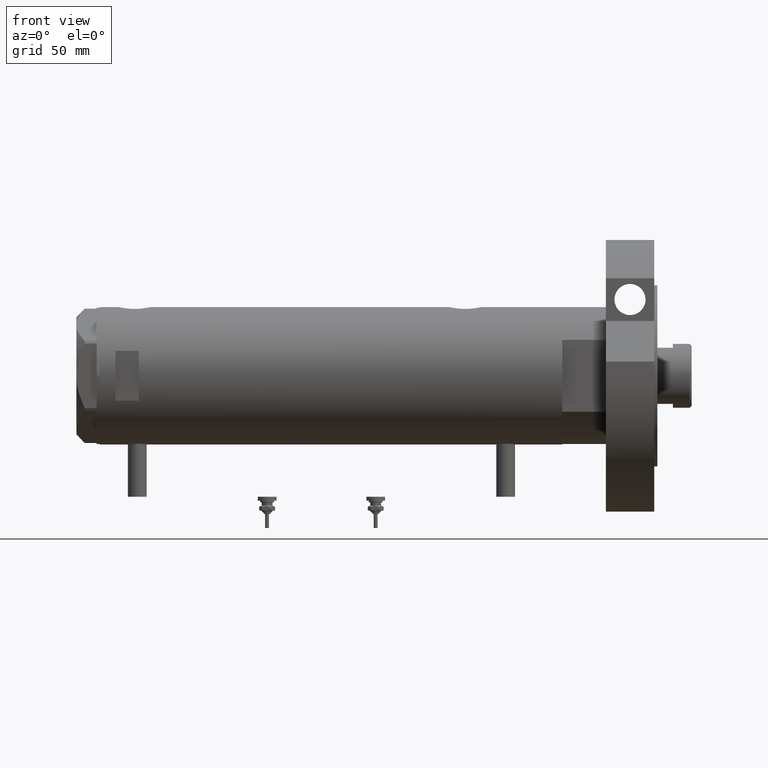
[diagram: clean part render]
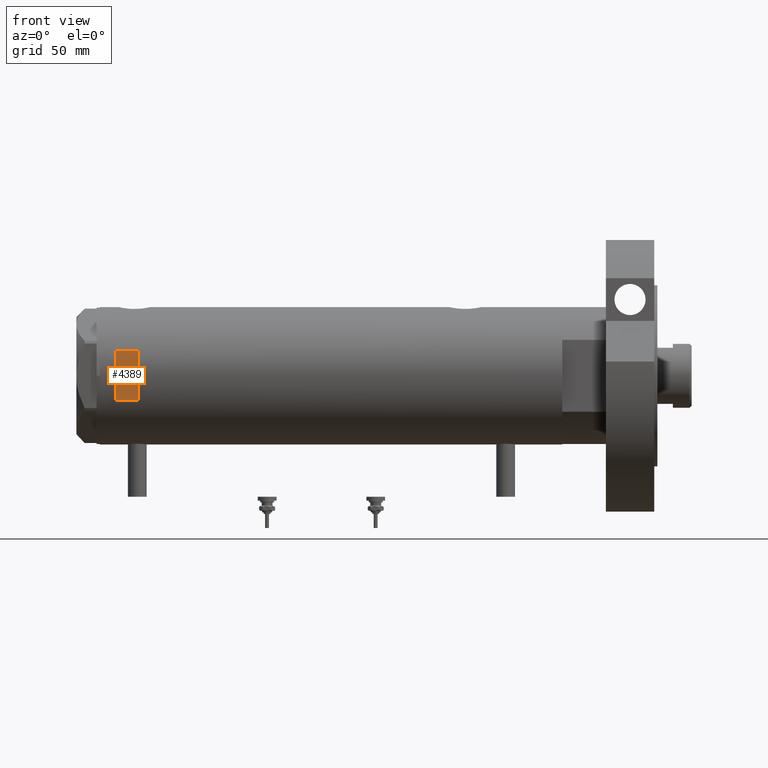
[diagram: same view with one face highlighted and labeled with its STEP entity id]
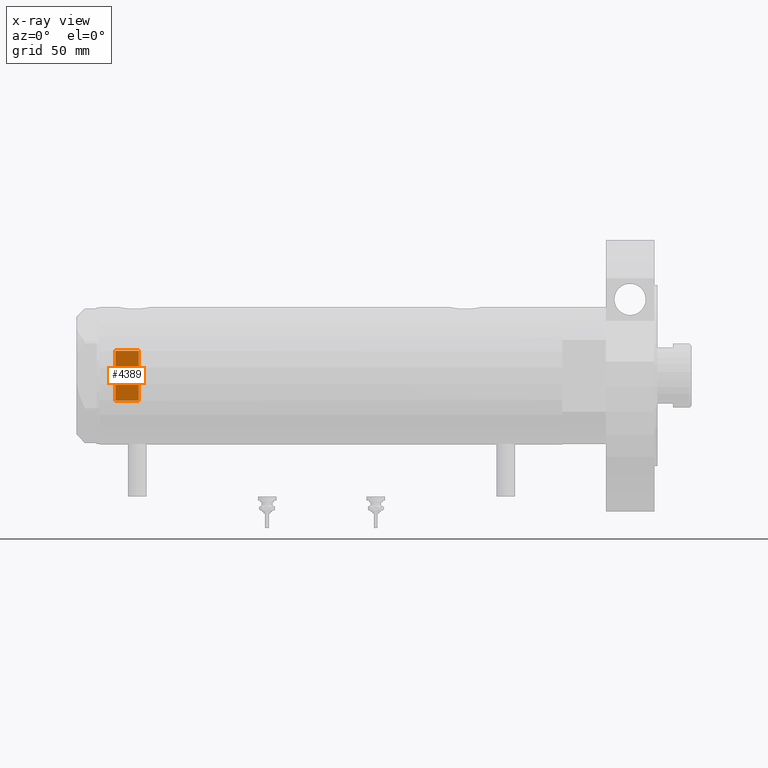
[diagram: x-ray of the same camera — body ghosted, the highlighted face saturated]
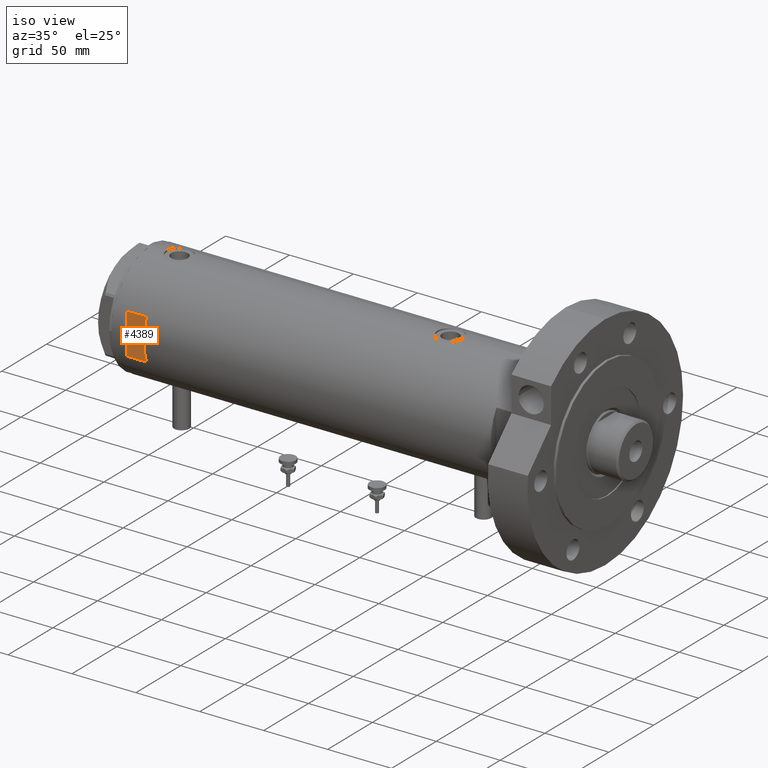
[diagram: same view with one face highlighted and labeled with its STEP entity id]
A machine part, front view. The second image highlights one B-rep face of the part: STEP entity #4389.
The next image is the same camera in x-ray: the body ghosted, the highlighted face saturated — about 0% of this face is hidden behind the body in this view.
A second angle (iso view) of the same face is appended — the face is thin or edge-on in the first view.
In plain terms, the highlighted planar face has unit normal (-0, 1, 0).
Its self-contained STEP definition (entity closure, byte-faithful):
#54 = VERTEX_POINT ( 'NONE', #6535 ) ;
#810 = EDGE_CURVE ( 'NONE', #6921, #3806, #6988, .T. ) ;
#827 = VECTOR ( 'NONE', #1845, 1000.000000000000000 ) ;
#930 = CARTESIAN_POINT ( 'NONE',  ( -15.96871942267132027, -40.99999999999999289, 123.1999999999999744 ) ) ;
#982 = DIRECTION ( 'NONE',  ( 1.000000000000000000, -0.000000000000000000, -0.000000000000000000 ) ) ;
#1189 = FACE_OUTER_BOUND ( 'NONE', #6317, .T. ) ;
#1561 = CARTESIAN_POINT ( 'NONE',  ( -44.00000000000000000, -40.99999999999999289, 123.1999999999999886 ) ) ;
#1680 = CARTESIAN_POINT ( 'NONE',  ( -15.96871942267132027, -40.99999999999999289, 138.1999999999999886 ) ) ;
#1716 = EDGE_CURVE ( 'NONE', #6921, #5342, #5002, .T. ) ;
#1755 = CARTESIAN_POINT ( 'NONE',  ( -44.00000000000000000, -40.99999999999999289, 138.1999999999999886 ) ) ;
#1765 = CARTESIAN_POINT ( 'NONE',  ( -44.00000000000000000, -40.99999999999999289, 138.1999999999999886 ) ) ;
#1845 = DIRECTION ( 'NONE',  ( 0.000000000000000000, 0.000000000000000000, 1.000000000000000000 ) ) ;
#2063 = ORIENTED_EDGE ( 'NONE', *, *, #3522, .T. ) ;
#2510 = VECTOR ( 'NONE', #6617, 1000.000000000000000 ) ;
#2568 = LINE ( 'NONE', #6572, #827 ) ;
#2626 = VECTOR ( 'NONE', #4683, 1000.000000000000000 ) ;
#3043 = ORIENTED_EDGE ( 'NONE', *, *, #6340, .T. ) ;
#3522 = EDGE_CURVE ( 'NONE', #54, #3806, #2568, .T. ) ;
#3577 = PLANE ( 'NONE',  #5814 ) ;
#3781 = ORIENTED_EDGE ( 'NONE', *, *, #810, .F. ) ;
#3804 = VECTOR ( 'NONE', #982, 1000.000000000000000 ) ;
#3806 = VERTEX_POINT ( 'NONE', #4951 ) ;
#4031 = DIRECTION ( 'NONE',  ( 0.000000000000000000, 1.000000000000000000, 0.000000000000000000 ) ) ;
#4389 = ADVANCED_FACE ( 'NONE', ( #1189 ), #3577, .F. ) ;
#4452 = ORIENTED_EDGE ( 'NONE', *, *, #1716, .T. ) ;
#4683 = DIRECTION ( 'NONE',  ( 1.000000000000000000, -0.000000000000000000, -0.000000000000000000 ) ) ;
#4951 = CARTESIAN_POINT ( 'NONE',  ( 15.96871942267132027, -40.99999999999999289, 138.1999999999999886 ) ) ;
#5002 = LINE ( 'NONE', #5585, #2510 ) ;
#5342 = VERTEX_POINT ( 'NONE', #930 ) ;
#5585 = CARTESIAN_POINT ( 'NONE',  ( -15.96871942267132027, -40.99999999999999289, -148.1999999999999886 ) ) ;
#5814 = AXIS2_PLACEMENT_3D ( 'NONE', #1765, #4031, #6526 ) ;
#6317 = EDGE_LOOP ( 'NONE', ( #4452, #3043, #2063, #3781 ) ) ;
#6340 = EDGE_CURVE ( 'NONE', #5342, #54, #6793, .T. ) ;
#6526 = DIRECTION ( 'NONE',  ( 0.000000000000000000, -0.000000000000000000, 1.000000000000000000 ) ) ;
#6535 = CARTESIAN_POINT ( 'NONE',  ( 15.96871942267132027, -40.99999999999999289, 123.1999999999999744 ) ) ;
#6572 = CARTESIAN_POINT ( 'NONE',  ( 15.96871942267132027, -40.99999999999999289, -148.1999999999999886 ) ) ;
#6617 = DIRECTION ( 'NONE',  ( -0.000000000000000000, -0.000000000000000000, -1.000000000000000000 ) ) ;
#6793 = LINE ( 'NONE', #1561, #3804 ) ;
#6921 = VERTEX_POINT ( 'NONE', #1680 ) ;
#6988 = LINE ( 'NONE', #1755, #2626 ) ;